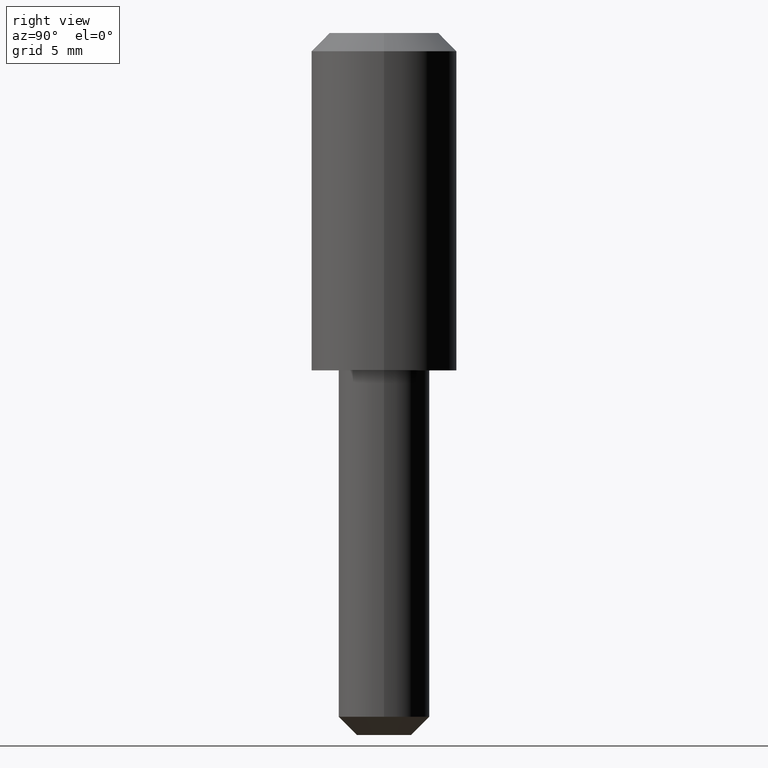
[diagram: clean part render]
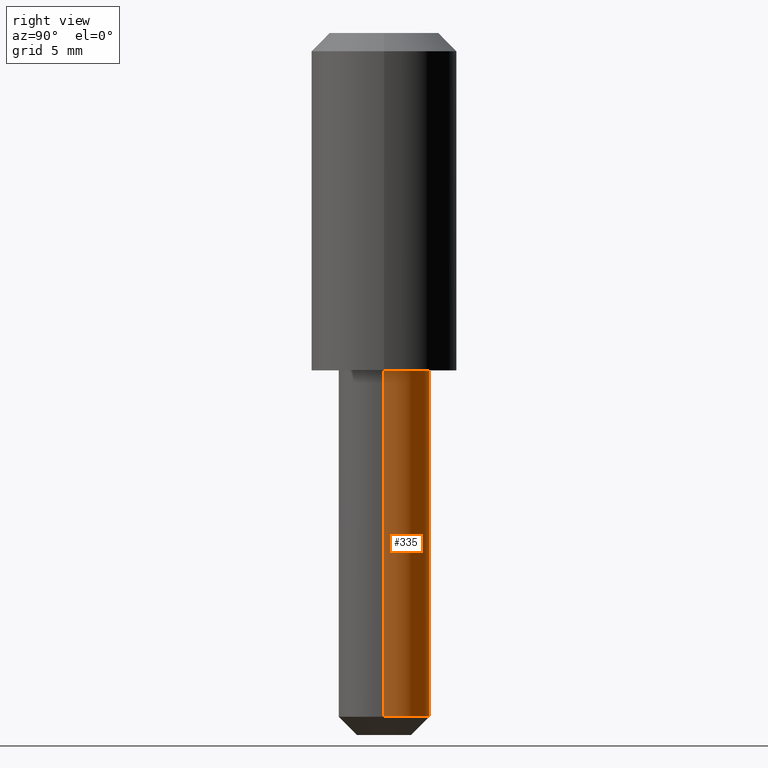
[diagram: same view with one face highlighted and labeled with its STEP entity id]
A machine part, right view. The second image highlights one B-rep face of the part: STEP entity #335.
In plain terms, the highlighted cylindrical surface (partial cylindrical patch) has radius 2.5 mm, axis along (0, 0, 1).
Its self-contained STEP definition (entity closure, byte-faithful):
#39=CARTESIAN_POINT('',(2.500000000000000,-2.326829E-015,-19.0));
#40=VERTEX_POINT('',#39);
#47=CARTESIAN_POINT('',(-2.500000000000000,-2.326829E-015,-19.0));
#48=VERTEX_POINT('',#47);
#134=CARTESIAN_POINT('',(2.500000000000000,0.0,0.0));
#135=VERTEX_POINT('',#134);
#136=CARTESIAN_POINT('',(2.500000000000000,-2.326829E-015,-19.0));
#137=DIRECTION('',(0.0,0.0,1.0));
#138=VECTOR('',#137,19.0);
#139=LINE('',#136,#138);
#140=EDGE_CURVE('',#40,#135,#139,.T.);
#142=CARTESIAN_POINT('',(-2.500000000000000,0.0,0.0));
#143=VERTEX_POINT('',#142);
#151=CARTESIAN_POINT('',(-2.500000000000000,-2.326829E-015,-19.0));
#152=DIRECTION('',(0.0,0.0,1.0));
#153=VECTOR('',#152,19.0);
#154=LINE('',#151,#153);
#155=EDGE_CURVE('',#48,#143,#154,.T.);
#308=CARTESIAN_POINT('',(0.0,0.0,0.0));
#309=DIRECTION('',(0.0,1.224647E-016,1.0));
#310=DIRECTION('',(0.0,-1.0,1.224647E-016));
#311=AXIS2_PLACEMENT_3D('',#308,#309,#310);
#312=CIRCLE('',#311,2.499999999999999);
#313=EDGE_CURVE('',#135,#143,#312,.T.);
#318=CARTESIAN_POINT('',(0.0,-2.326829E-015,-19.000000010000001));
#319=DIRECTION('',(0.0,1.224647E-016,1.0));
#320=DIRECTION('',(0.0,-1.0,1.224647E-016));
#321=AXIS2_PLACEMENT_3D('',#318,#319,#320);
#322=CYLINDRICAL_SURFACE('',#321,2.500000000000003);
#323=ORIENTED_EDGE('',*,*,#140,.F.);
#324=CARTESIAN_POINT('',(0.0,-2.326829E-015,-19.0));
#325=DIRECTION('',(0.0,1.224647E-016,1.0));
#326=DIRECTION('',(-1.0,0.0,0.0));
#327=AXIS2_PLACEMENT_3D('',#324,#325,#326);
#328=CIRCLE('',#327,2.500000000000003);
#329=EDGE_CURVE('',#40,#48,#328,.T.);
#330=ORIENTED_EDGE('',*,*,#329,.T.);
#331=ORIENTED_EDGE('',*,*,#155,.T.);
#332=ORIENTED_EDGE('',*,*,#313,.F.);
#333=EDGE_LOOP('',(#323,#330,#331,#332));
#334=FACE_OUTER_BOUND('',#333,.T.);
#335=ADVANCED_FACE('',(#334),#322,.T.);